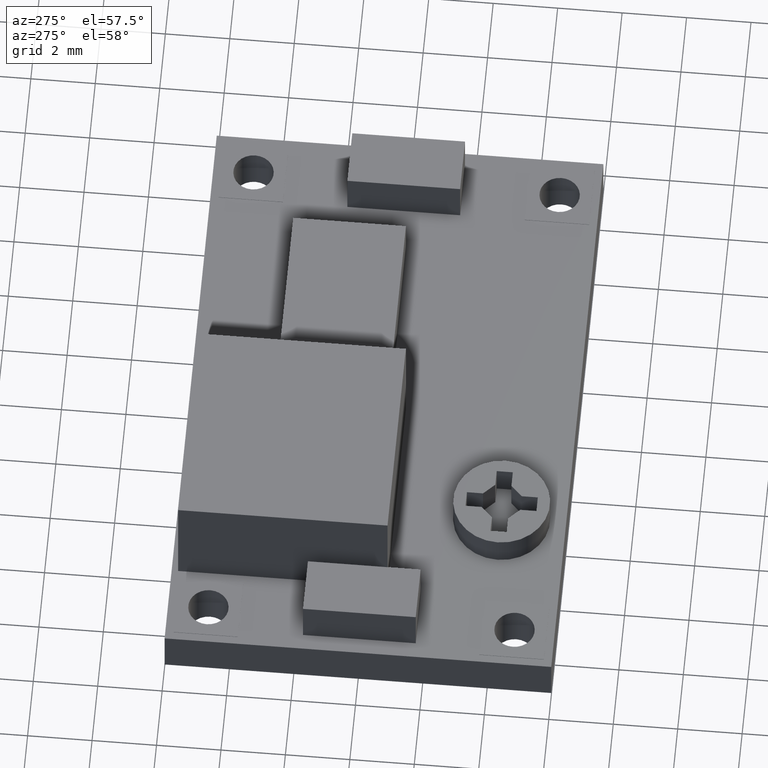
[diagram: clean part render]
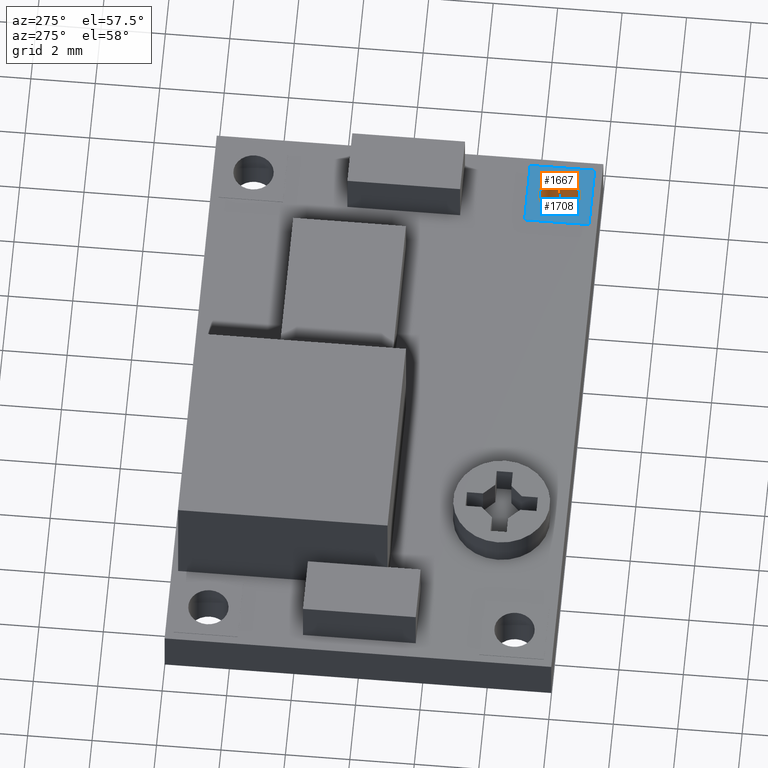
[diagram: same view with the hole feature highlighted: cylindrical wall and planar end face, labeled with their STEP entity ids]
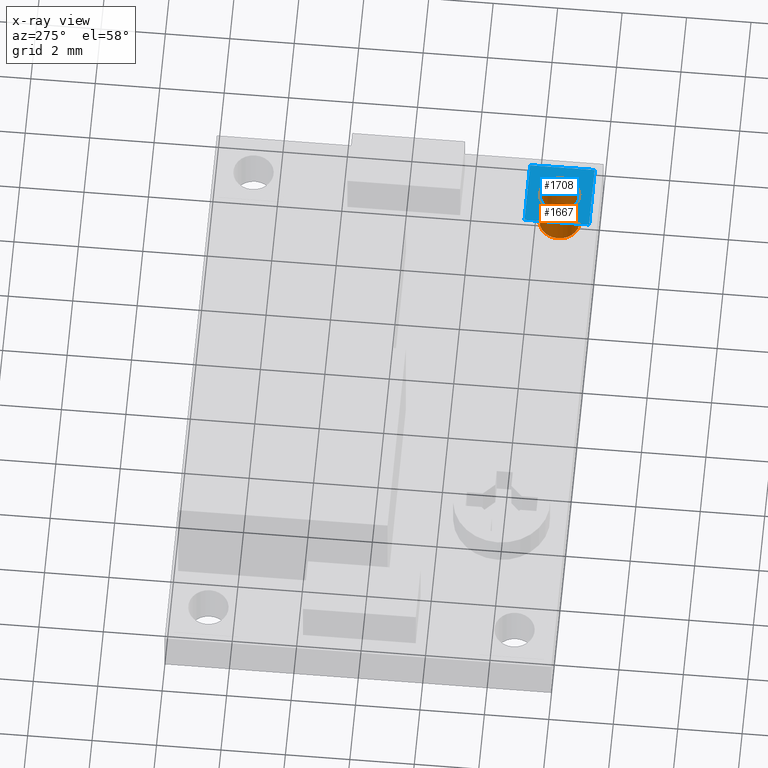
[diagram: x-ray of the same camera — body ghosted, the hole faces saturated]
A machine part, auxiliary view. The highlighted faces form one hole feature of diameter 1.25 mm: the cylindrical wall (entity #1667, orange) and its adjacent planar end face (entity #1708, blue) — they share a circular edge in the B-rep.
The next image is the same camera in x-ray (body ghosted, the hole faces saturated) — the bore reads through the body.
Wall:
#42=CIRCLE('',#1777,0.625);
#43=CIRCLE('',#1778,0.625);
#49=CYLINDRICAL_SURFACE('',#1776,0.625);
#72=FACE_OUTER_BOUND('',#162,.T.);
#162=EDGE_LOOP('',(#1143,#1144,#1145,#1146));
#302=LINE('',#2378,#511);
#511=VECTOR('',#1959,0.625);
#707=VERTEX_POINT('',#2375);
#708=VERTEX_POINT('',#2377);
#872=EDGE_CURVE('',#707,#707,#42,.T.);
#873=EDGE_CURVE('',#707,#708,#302,.T.);
#874=EDGE_CURVE('',#708,#708,#43,.T.);
#1143=ORIENTED_EDGE('',*,*,#872,.F.);
#1144=ORIENTED_EDGE('',*,*,#873,.T.);
#1145=ORIENTED_EDGE('',*,*,#874,.F.);
#1146=ORIENTED_EDGE('',*,*,#873,.F.);
#1667=ADVANCED_FACE('',(#72),#49,.F.);
#1776=AXIS2_PLACEMENT_3D('',#2374,#1955,#1956);
#1777=AXIS2_PLACEMENT_3D('',#2376,#1957,#1958);
#1778=AXIS2_PLACEMENT_3D('',#2379,#1960,#1961);
#1955=DIRECTION('center_axis',(0.,-2.22044604925031E-16,1.));
#1956=DIRECTION('ref_axis',(1.,0.,0.));
#1957=DIRECTION('center_axis',(0.,-2.22044604925031E-16,1.));
#1958=DIRECTION('ref_axis',(1.,0.,0.));
#1959=DIRECTION('',(0.,-2.22044604925031E-16,1.));
#1960=DIRECTION('center_axis',(0.,2.22044604925031E-16,-1.));
#1961=DIRECTION('ref_axis',(1.,0.,0.));
#2374=CARTESIAN_POINT('Origin',(8.,-10.76,-27.0930515410902));
#2375=CARTESIAN_POINT('',(7.375,-10.76,-6.));
#2376=CARTESIAN_POINT('Origin',(8.,-10.76,-6.));
#2377=CARTESIAN_POINT('',(7.375,-10.76,-4.48));
#2378=CARTESIAN_POINT('',(7.375,-10.76,-27.0930515410902));
#2379=CARTESIAN_POINT('Origin',(8.,-10.76,-4.48));
End face:
#22=FACE_BOUND('',#211,.T.);
#43=CIRCLE('',#1778,0.625);
#113=FACE_OUTER_BOUND('',#210,.T.);
#210=EDGE_LOOP('',(#1314,#1315,#1316,#1317));
#211=EDGE_LOOP('',(#1318));
#378=LINE('',#2543,#587);
#382=LINE('',#2550,#591);
#384=LINE('',#2555,#593);
#391=LINE('',#2568,#600);
#587=VECTOR('',#2105,10.);
#591=VECTOR('',#2111,10.);
#593=VECTOR('',#2115,10.);
#600=VECTOR('',#2126,10.);
#708=VERTEX_POINT('',#2377);
#761=VERTEX_POINT('',#2540);
#762=VERTEX_POINT('',#2542);
#764=VERTEX_POINT('',#2548);
#766=VERTEX_POINT('',#2554);
#874=EDGE_CURVE('',#708,#708,#43,.T.);
#952=EDGE_CURVE('',#762,#761,#378,.T.);
#956=EDGE_CURVE('',#761,#764,#382,.T.);
#958=EDGE_CURVE('',#766,#762,#384,.T.);
#965=EDGE_CURVE('',#764,#766,#391,.T.);
#1314=ORIENTED_EDGE('',*,*,#958,.T.);
#1315=ORIENTED_EDGE('',*,*,#952,.T.);
#1316=ORIENTED_EDGE('',*,*,#956,.T.);
#1317=ORIENTED_EDGE('',*,*,#965,.T.);
#1318=ORIENTED_EDGE('',*,*,#874,.T.);
#1529=PLANE('',#1821);
#1708=ADVANCED_FACE('',(#113,#22),#1529,.T.);
#1778=AXIS2_PLACEMENT_3D('',#2379,#1960,#1961);
#1821=AXIS2_PLACEMENT_3D('',#2585,#2143,#2144);
#1960=DIRECTION('center_axis',(0.,2.22044604925031E-16,-1.));
#1961=DIRECTION('ref_axis',(1.,0.,0.));
#2105=DIRECTION('',(-5.55111512312578E-16,1.,2.22044604925031E-16));
#2111=DIRECTION('',(-1.,-5.55111512312578E-16,-1.23259516440783E-31));
#2115=DIRECTION('',(1.,0.,0.));
#2126=DIRECTION('',(-5.55111512312578E-16,-1.,-2.22044604925031E-16));
#2143=DIRECTION('center_axis',(0.,-2.22044604925031E-16,1.));
#2144=DIRECTION('ref_axis',(0.,-1.,-2.22044604925031E-16));
#2377=CARTESIAN_POINT('',(7.375,-10.76,-4.48));
#2379=CARTESIAN_POINT('Origin',(8.,-10.76,-4.48));
#2540=CARTESIAN_POINT('',(9.,-9.76,-4.48));
#2542=CARTESIAN_POINT('',(9.,-11.76,-4.48));
#2543=CARTESIAN_POINT('',(9.,-9.76,-4.48));
#2548=CARTESIAN_POINT('',(7.,-9.76,-4.48));
#2550=CARTESIAN_POINT('',(7.,-9.76,-4.48));
#2554=CARTESIAN_POINT('',(7.,-11.76,-4.48));
#2555=CARTESIAN_POINT('',(9.,-11.76,-4.48));
#2568=CARTESIAN_POINT('',(7.,-11.76,-4.48));
#2585=CARTESIAN_POINT('Origin',(8.,-10.76,-4.48));